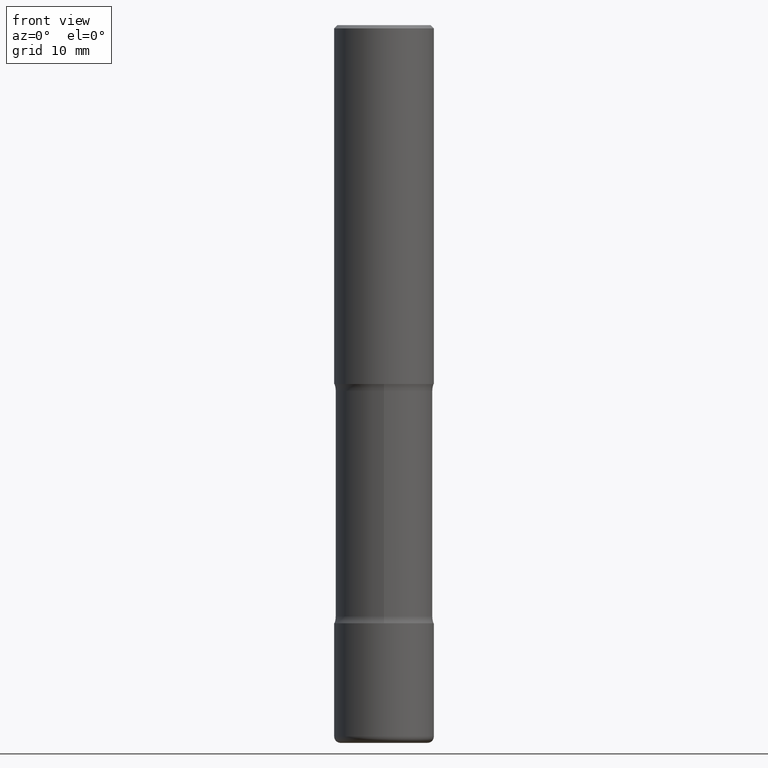
[diagram: clean part render]
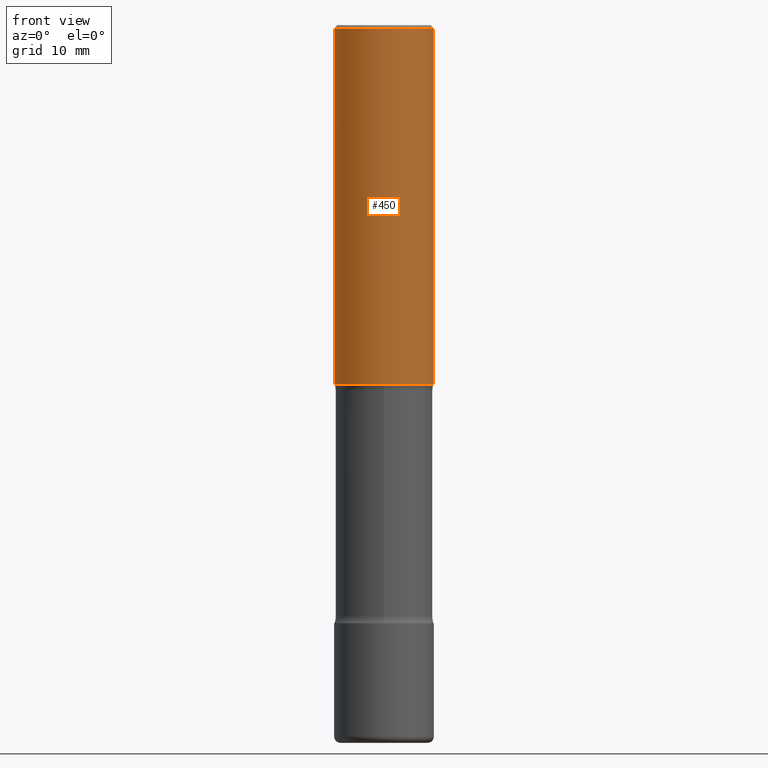
[diagram: same view with one face highlighted and labeled with its STEP entity id]
A machine part, front view. The second image highlights one B-rep face of the part: STEP entity #450.
In plain terms, the highlighted cylindrical surface (partial cylindrical patch) has radius 7.9375 mm, axis along (-0, 0, 1).
Its self-contained STEP definition (entity closure, byte-faithful):
#8 = CARTESIAN_POINT ( 'NONE',  ( -0.3125000000000003331, -1.742385270336653059E-15, -2.250000000000000000 ) ) ;
#61 = AXIS2_PLACEMENT_3D ( 'NONE', #172, #84, #254 ) ;
#84 = DIRECTION ( 'NONE',  ( -2.445468806185136597E-29, 3.491481338843145583E-15, 1.000000000000000000 ) ) ;
#126 = CIRCLE ( 'NONE', #252, 0.3125000000000003331 ) ;
#129 = EDGE_CURVE ( 'NONE', #501, #321, #126, .T. ) ;
#140 = CYLINDRICAL_SURFACE ( 'NONE', #341, 0.3125000000000001665 ) ;
#141 = LINE ( 'NONE', #445, #422 ) ;
#142 = CARTESIAN_POINT ( 'NONE',  ( 0.3125000000000000000, -2.213735251080466911E-15, -0.02000000000000006981 ) ) ;
#144 = VERTEX_POINT ( 'NONE', #291 ) ;
#172 = CARTESIAN_POINT ( 'NONE',  ( 4.890937612370289799E-31, -6.982962677686315028E-17, -0.02000000000000006981 ) ) ;
#177 = ORIENTED_EDGE ( 'NONE', *, *, #493, .T. ) ;
#182 = CARTESIAN_POINT ( 'NONE',  ( -0.3125000000000001665, 2.220446049250314264E-15, -1.537167215704658792E-29 ) ) ;
#189 = EDGE_CURVE ( 'NONE', #501, #144, #337, .T. ) ;
#202 = CARTESIAN_POINT ( 'NONE',  ( 5.502304813916557343E-29, -7.855833012397078448E-15, -2.250000000000000000 ) ) ;
#208 = DIRECTION ( 'NONE',  ( 1.000000000000000000, -6.982962677686264344E-15, 0.000000000000000000 ) ) ;
#230 = FACE_OUTER_BOUND ( 'NONE', #526, .T. ) ;
#252 = AXIS2_PLACEMENT_3D ( 'NONE', #202, #502, #208 ) ;
#254 = DIRECTION ( 'NONE',  ( 1.000000000000000000, -6.982962677686266711E-15, 0.000000000000000000 ) ) ;
#275 = CIRCLE ( 'NONE', #61, 0.3125000000000000000 ) ;
#278 = ORIENTED_EDGE ( 'NONE', *, *, #189, .F. ) ;
#291 = CARTESIAN_POINT ( 'NONE',  ( -0.3125000000000000000, 2.112346210000095443E-15, -0.02000000000000006981 ) ) ;
#321 = VERTEX_POINT ( 'NONE', #457 ) ;
#337 = LINE ( 'NONE', #182, #541 ) ;
#341 = AXIS2_PLACEMENT_3D ( 'NONE', #484, #424, #360 ) ;
#360 = DIRECTION ( 'NONE',  ( 1.000000000000000000, -6.982962677686266711E-15, 4.876176775795935232E-29 ) ) ;
#397 = ORIENTED_EDGE ( 'NONE', *, *, #129, .T. ) ;
#408 = EDGE_CURVE ( 'NONE', #144, #494, #275, .T. ) ;
#422 = VECTOR ( 'NONE', #529, 39.37007874015748143 ) ;
#424 = DIRECTION ( 'NONE',  ( -2.445468806185136597E-29, 3.491481338843145583E-15, 1.000000000000000000 ) ) ;
#445 = CARTESIAN_POINT ( 'NONE',  ( 0.3125000000000001665, -2.182175836776959530E-15, 1.523805242436230636E-29 ) ) ;
#450 = ADVANCED_FACE ( 'NONE', ( #230 ), #140, .T. ) ;
#457 = CARTESIAN_POINT ( 'NONE',  ( 0.3125000000000003331, -1.003800884917403837E-14, -2.250000000000000000 ) ) ;
#458 = ORIENTED_EDGE ( 'NONE', *, *, #408, .F. ) ;
#484 = CARTESIAN_POINT ( 'NONE',  ( 0.000000000000000000, 0.000000000000000000, 0.000000000000000000 ) ) ;
#493 = EDGE_CURVE ( 'NONE', #321, #494, #141, .T. ) ;
#494 = VERTEX_POINT ( 'NONE', #142 ) ;
#501 = VERTEX_POINT ( 'NONE', #8 ) ;
#502 = DIRECTION ( 'NONE',  ( -2.445468806185136597E-29, 3.491481338843145583E-15, 1.000000000000000000 ) ) ;
#526 = EDGE_LOOP ( 'NONE', ( #278, #397, #177, #458 ) ) ;
#529 = DIRECTION ( 'NONE',  ( -2.445468806185136877E-29, 3.491481338843145188E-15, 1.000000000000000000 ) ) ;
#541 = VECTOR ( 'NONE', #557, 39.37007874015748143 ) ;
#557 = DIRECTION ( 'NONE',  ( -2.445468806185136877E-29, 3.491481338843145188E-15, 1.000000000000000000 ) ) ;